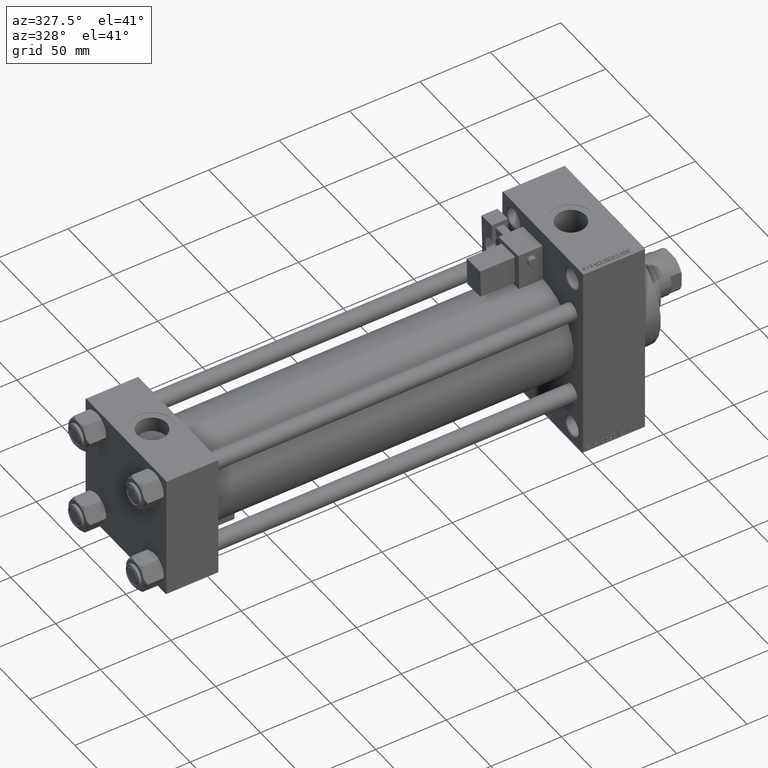
[diagram: clean part render]
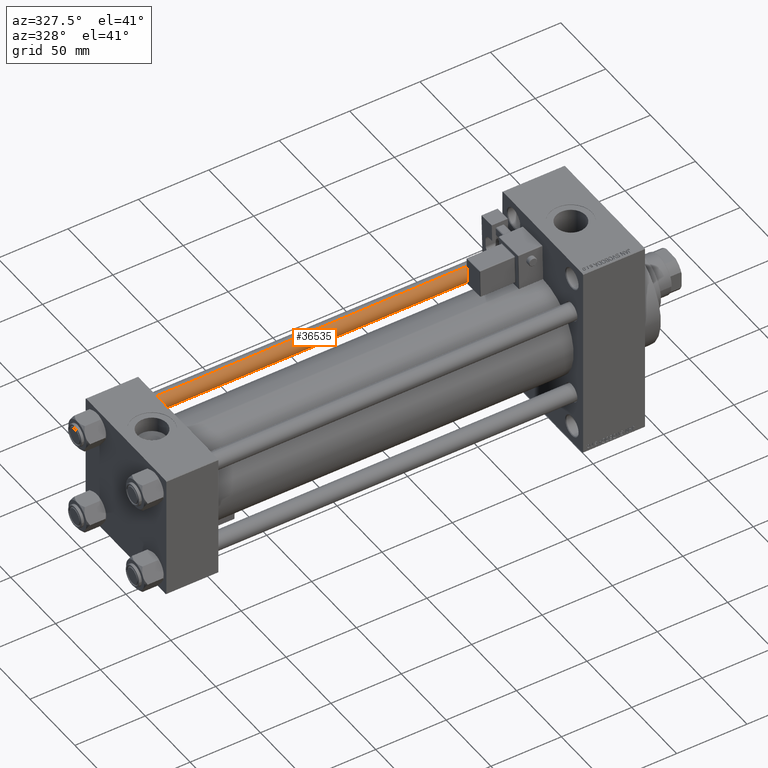
[diagram: same view with one face highlighted and labeled with its STEP entity id]
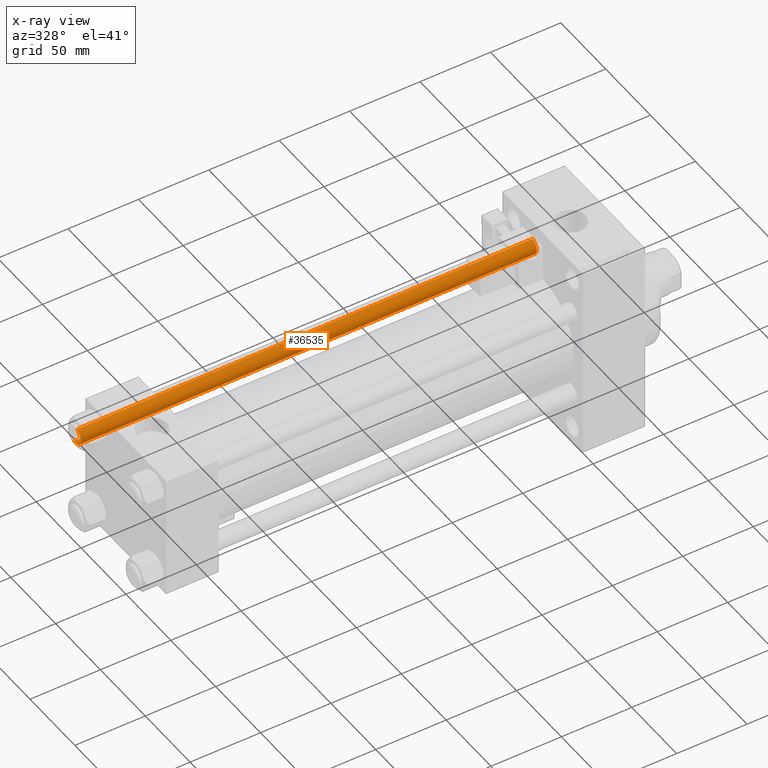
[diagram: x-ray of the same camera — body ghosted, the highlighted face saturated]
A machine part, auxiliary view. The second image highlights one B-rep face of the part: STEP entity #36535.
The next image is the same camera in x-ray: the body ghosted, the highlighted face saturated — about 0% of this face is hidden behind the body in this view.
In plain terms, the highlighted cylindrical surface (edge-blend (fillet) strip) has radius 6 mm, axis along (-1, -0, 0).
Its self-contained STEP definition (entity closure, byte-faithful):
#2532 = FACE_OUTER_BOUND ( 'NONE', #17267, .T. ) ;
#6364 = ORIENTED_EDGE ( 'NONE', *, *, #30897, .T. ) ;
#6420 = CYLINDRICAL_SURFACE ( 'NONE', #30761, 6.000000000000000888 ) ;
#8725 = CARTESIAN_POINT ( 'NONE',  ( 6.000000000000000888, 7.347880794884120722E-16, 0.5000000000000004441 ) ) ;
#9969 = EDGE_CURVE ( 'NONE', #22804, #47469, #11300, .T. ) ;
#10069 = CARTESIAN_POINT ( 'NONE',  ( -6.000000000000000888, 0.000000000000000000, 325.0000000000000000 ) ) ;
#10482 = DIRECTION ( 'NONE',  ( -0.000000000000000000, -0.000000000000000000, -1.000000000000000000 ) ) ;
#10581 = DIRECTION ( 'NONE',  ( -0.000000000000000000, -0.000000000000000000, -1.000000000000000000 ) ) ;
#11300 = CIRCLE ( 'NONE', #27105, 6.000000000000000888 ) ;
#12301 = AXIS2_PLACEMENT_3D ( 'NONE', #17533, #14380, #17786 ) ;
#14380 = DIRECTION ( 'NONE',  ( -0.000000000000000000, -0.000000000000000000, 1.000000000000000000 ) ) ;
#17267 = EDGE_LOOP ( 'NONE', ( #49414, #24425, #48739, #6364 ) ) ;
#17533 = CARTESIAN_POINT ( 'NONE',  ( 0.000000000000000000, 0.000000000000000000, 0.5000000000000004441 ) ) ;
#17786 = DIRECTION ( 'NONE',  ( 1.000000000000000000, 0.000000000000000000, 0.000000000000000000 ) ) ;
#17888 = CARTESIAN_POINT ( 'NONE',  ( -6.000000000000000888, 0.000000000000000000, 324.5000000000001137 ) ) ;
#18487 = VECTOR ( 'NONE', #10482, 1000.000000000000000 ) ;
#21610 = EDGE_CURVE ( 'NONE', #47469, #51225, #37692, .T. ) ;
#22804 = VERTEX_POINT ( 'NONE', #42047 ) ;
#24425 = ORIENTED_EDGE ( 'NONE', *, *, #9969, .T. ) ;
#27105 = AXIS2_PLACEMENT_3D ( 'NONE', #34462, #30282, #45653 ) ;
#29601 = DIRECTION ( 'NONE',  ( -0.000000000000000000, -0.000000000000000000, -1.000000000000000000 ) ) ;
#30282 = DIRECTION ( 'NONE',  ( 0.000000000000000000, 0.000000000000000000, -1.000000000000000000 ) ) ;
#30357 = CARTESIAN_POINT ( 'NONE',  ( 0.000000000000000000, 0.000000000000000000, 325.0000000000000000 ) ) ;
#30761 = AXIS2_PLACEMENT_3D ( 'NONE', #30357, #10581, #49918 ) ;
#30897 = EDGE_CURVE ( 'NONE', #51225, #31874, #45532, .T. ) ;
#31874 = VERTEX_POINT ( 'NONE', #8725 ) ;
#34462 = CARTESIAN_POINT ( 'NONE',  ( 0.000000000000000000, 0.000000000000000000, 324.5000000000001137 ) ) ;
#36535 = ADVANCED_FACE ( 'NONE', ( #2532 ), #6420, .T. ) ;
#37692 = LINE ( 'NONE', #10069, #43650 ) ;
#42047 = CARTESIAN_POINT ( 'NONE',  ( 6.000000000000000888, 7.347880794884120722E-16, 324.5000000000001137 ) ) ;
#43650 = VECTOR ( 'NONE', #29601, 1000.000000000000000 ) ;
#45532 = CIRCLE ( 'NONE', #12301, 6.000000000000000888 ) ;
#45653 = DIRECTION ( 'NONE',  ( 1.000000000000000000, 0.000000000000000000, 0.000000000000000000 ) ) ;
#46159 = LINE ( 'NONE', #49821, #18487 ) ;
#47469 = VERTEX_POINT ( 'NONE', #17888 ) ;
#48739 = ORIENTED_EDGE ( 'NONE', *, *, #21610, .T. ) ;
#49414 = ORIENTED_EDGE ( 'NONE', *, *, #50949, .F. ) ;
#49765 = CARTESIAN_POINT ( 'NONE',  ( -6.000000000000000888, 0.000000000000000000, 0.5000000000000004441 ) ) ;
#49821 = CARTESIAN_POINT ( 'NONE',  ( 6.000000000000000888, 7.347880794884120722E-16, 325.0000000000000000 ) ) ;
#49918 = DIRECTION ( 'NONE',  ( -1.000000000000000000, 0.000000000000000000, 0.000000000000000000 ) ) ;
#50949 = EDGE_CURVE ( 'NONE', #22804, #31874, #46159, .T. ) ;
#51225 = VERTEX_POINT ( 'NONE', #49765 ) ;